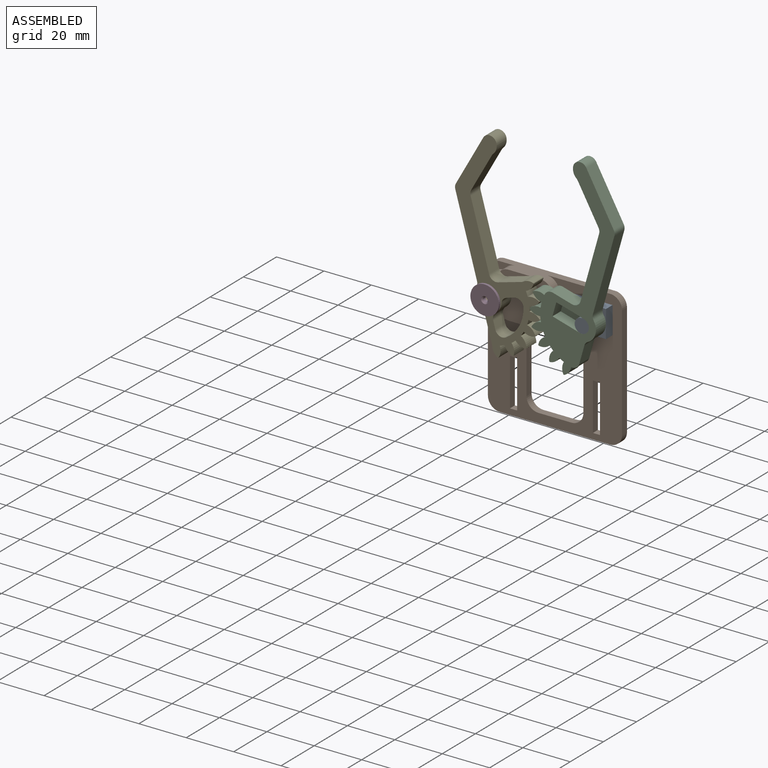
[diagram: assembled view]
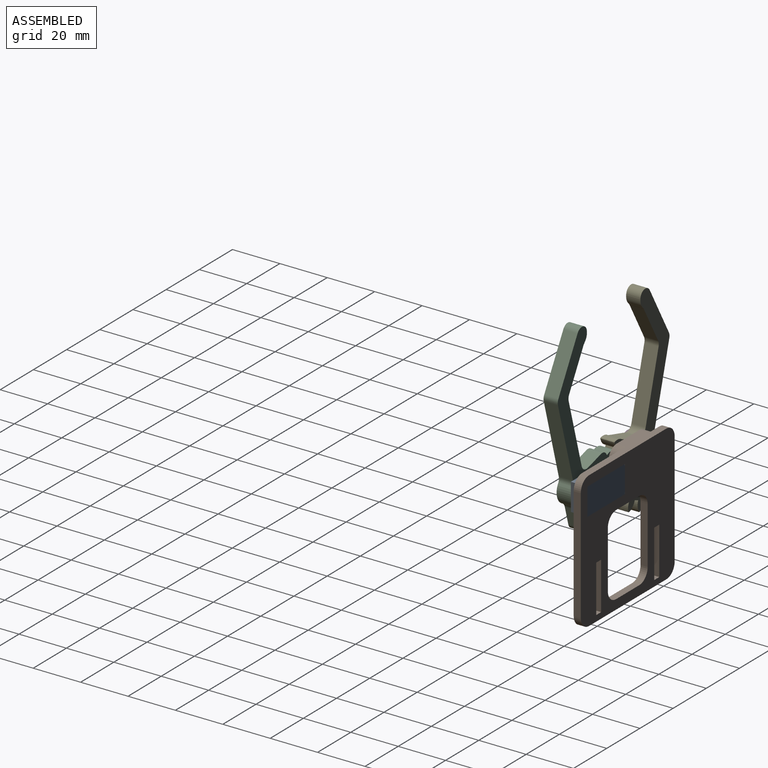
[diagram: assembled view, second angle]
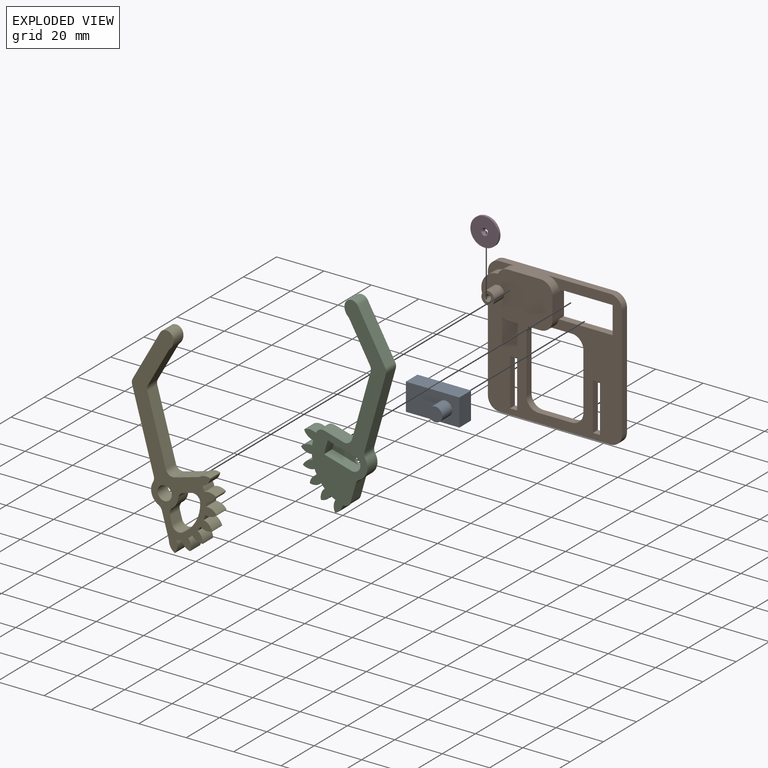
[diagram: exploded view]
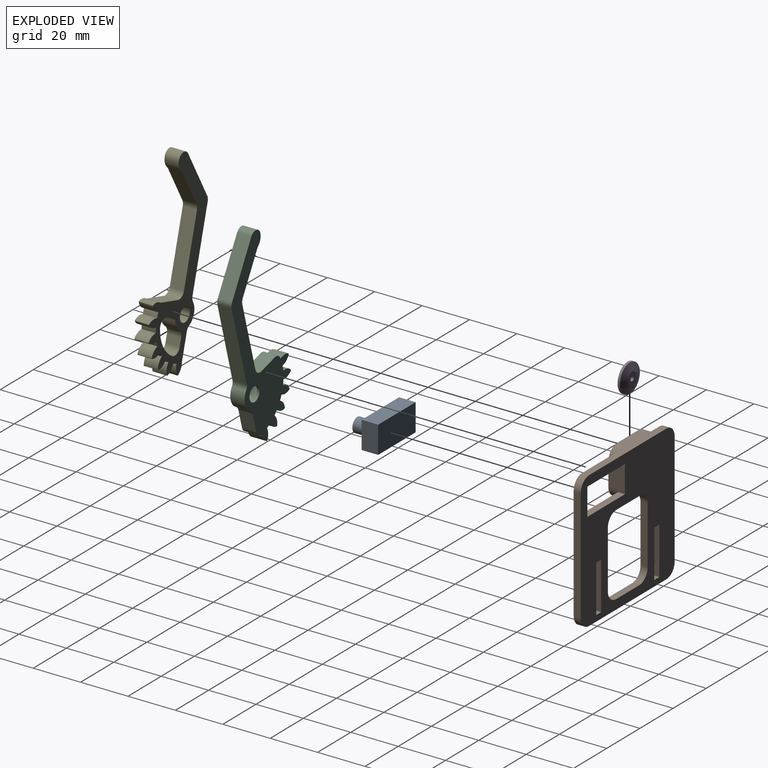
[diagram: exploded view, second angle]
ASSEMBLY  parts=5 mates=4
PART A: 9 faces, bbox 22.6x11.5x13 mm
  f0: plane 11.5x7mm, normal (1,0,0), area 80.5mm2, adj f1,f4,f5,f6
  f1: plane 22.53x7mm, normal (0,-1,0), area 157.7mm2, adj f0,f2,f5,f6
  f2: cylinder r=17.5mm len=7mm, axis (0,0,1), area 1.6mm2, adj f1,f3,f5,f6
  f3: plane 11.29x7mm, normal (-1,0,0), area 79mm2, adj f2,f4,f5,f6
  f4: plane 22.6x7mm, normal (0,1,0), area 158.2mm2, adj f0,f3,f5,f6
  f5: plane 22.6x11.5mm, normal (0,0,-1), area 259.9mm2, adj f0,f1,f2,f3,f4
  f6: plane 22.6x11.5mm, normal (0,0,1), area 231.6mm2, adj f0,f1,f2,f3,f4,f7
  f7: cylinder r=3mm len=6mm, axis (0,0,-1), area 113.1mm2, adj f6,f8
  f8: plane 6x6mm, normal (0,0,1), area 28.3mm2, adj f7
PART B: 42 faces, bbox 56.6x57.5x13 mm
  f0: plane 57.5x56.6mm, normal (0,0,1), area 1522.9mm2, adj f1,f2,f3,f4,f5,f6,f7,f8
  f1: plane 3x3mm, normal (0,-1,0), area 9mm2, adj f0,f2,f20,f21
  f2: plane 20x3mm, normal (1,0,0), area 60mm2, adj f0,f1,f3,f21
  f3: plane 3x3mm, normal (0,1,0), area 9mm2, adj f0,f2,f20,f21
  f4: plane 3x3mm, normal (0,-1,0), area 9mm2, adj f0,f5,f16,f21
  f5: plane 20x3mm, normal (1,0,0), area 60mm2, adj f0,f4,f6,f21
  f6: plane 3x3mm, normal (0,1,0), area 9mm2, adj f0,f5,f16,f21
  f7: plane 24x3mm, normal (-1,0,0), area 72mm2, adj f0,f21,f34,f36
  f8: plane 23.84x7mm, normal (0,-1,0), area 96.1mm2, adj f0,f21,f24,f28,f30,f33,f34
  f9: plane 24x3mm, normal (1,0,0), area 72mm2, adj f0,f21,f33,f35
  f10: plane 22.7x3mm, normal (0,-1,0), area 68.1mm2, adj f0,f18,f21,f27
  f11: plane 9.5x7mm, normal (1,0,0), area 66.5mm2, adj f21,f24,f27,f30
  f12: plane 22.7x3mm, normal (0,1,0), area 68.1mm2, adj f0,f18,f21,f30
  f13: plane 46.6x7mm, normal (0,1,0), area 193.9mm2, adj f0,f21,f22,f24,f27,f29,f31,f32
  f14: plane 47.5x3mm, normal (1,0,0), area 142.5mm2, adj f0,f21,f32,f37
  f15: plane 46.6x3mm, normal (0,-1,0), area 139.8mm2, adj f0,f21,f37,f38
  f16: plane 20x3mm, normal (-1,0,0), area 60mm2, adj f0,f4,f6,f21
  f17: plane 14x3mm, normal (0,1,0), area 42mm2, adj f0,f21,f35,f36
  f18: plane 11.5x3mm, normal (-1,0,0), area 34.5mm2, adj f0,f10,f12,f21
  f19: plane 47.5x3mm, normal (-1,0,0), area 142.5mm2, adj f0,f21,f22,f31,f38
  f20: plane 20x3mm, normal (-1,0,0), area 60mm2, adj f0,f1,f3,f21
  f21: plane 57.5x56.6mm, normal (0,0,-1), area 2058.5mm2, adj f1,f2,f3,f4,f5,f6,f7,f8
  f22: plane 11.47x9.75mm, normal (0,0,1), area 27.9mm2, adj f13,f19,f23,f29,f31
  f23: cylinder r=7mm len=14mm, axis (0,0,-1), area 88mm2, adj f0,f22,f24,f28,f29
  f24: plane 30x19.5mm, normal (0,0,1), area 484mm2, adj f8,f11,f13,f23,f25,f27,f28,f29
  f25: cylinder r=2.75mm len=6mm, axis (0,0,-1), area 103.7mm2, adj f24,f26
  f26: plane 5.5x5.5mm, normal (0,0,1), area 16.7mm2, adj f25,f40
  f27: cylinder r=5mm len=7mm, axis (0,0,-1), area 34.4mm2, adj f0,f10,f11,f13,f21,f24
  f28: cylinder r=5mm len=4.47mm, axis (0,0,-1), area 22.1mm2, adj f0,f8,f23,f24
  f29: cylinder r=5mm len=4.47mm, axis (0,0,-1), area 22.1mm2, adj f13,f22,f23,f24
  f30: cylinder r=5mm len=7mm, axis (0,0,-1), area 34.4mm2, adj f0,f8,f11,f12,f21,f24
  f31: cylinder r=5mm len=5mm, axis (0,0,1), area 23.6mm2, adj f13,f19,f21,f22
  f32: cylinder r=5mm len=5mm, axis (0,0,1), area 23.6mm2, adj f0,f13,f14,f21
  f33: cylinder r=5mm len=5mm, axis (0,0,1), area 23.6mm2, adj f0,f8,f9,f21
  f34: cylinder r=5mm len=5mm, axis (0,0,-1), area 23.6mm2, adj f0,f7,f8,f21
  f35: cylinder r=5mm len=5mm, axis (0,0,1), area 23.6mm2, adj f0,f9,f17,f21
  f36: cylinder r=5mm len=5mm, axis (0,0,-1), area 23.6mm2, adj f0,f7,f17,f21
  f37: cylinder r=5mm len=5mm, axis (0,0,1), area 23.6mm2, adj f0,f14,f15,f21
  f38: cylinder r=5mm len=5mm, axis (0,0,1), area 23.6mm2, adj f0,f15,f19,f21
  f39: cylinder r=1mm len=7.5mm, axis (0,0,1), area 47.1mm2, adj f40,f41
  f40: cone r=1mm half-angle=45deg, axis (0,0,1), area 5.6mm2, adj f26,f39
  f41: cone r=0mm half-angle=59deg, axis (0,0,1), area 3.7mm2, adj f39
PART C: 49 faces, bbox 27.9x81.8x6 mm
  f0: plane 12x5mm, normal (0,-1,0), area 60mm2, adj f1,f37,f38,f40
  f1: cylinder r=3mm len=6mm, axis (0,0,-1), area 66mm2, adj f0,f2,f38,f39,f40
  f2: plane 12x5mm, normal (0,1,0), area 60mm2, adj f1,f37,f38,f40
  f3: plane 7.8x6mm, normal (1,0,0), area 46.8mm2, adj f38,f39,f41,f45
  f4: cylinder r=6mm len=8.94mm, axis (0,0,-1), area 60.6mm2, adj f38,f39,f44,f45
  f5: plane 33.49x6mm, normal (1,0,0), area 201mm2, adj f6,f38,f39,f44
  f6: cylinder r=3mm len=6mm, axis (0,0,-1), area 14.1mm2, adj f5,f7,f38,f39
  f7: plane 16.7x16.7mm, normal (0.71,0.71,0), area 141.7mm2, adj f6,f38,f39,f47
  f8: cylinder r=4.55mm len=6mm, axis (0,0,-1), area 28.4mm2, adj f38,f39,f47,f48
  f9: plane 12.53x12.53mm, normal (-0.71,-0.71,0), area 106.3mm2, adj f38,f39,f46,f48
  f10: plane 28.96x6mm, normal (-1,0,0), area 173.8mm2, adj f38,f39,f42,f46
  f11: plane 8.24x6mm, normal (0,1,0), area 49.4mm2, adj f38,f39,f42,f43
  f12: cylinder r=17.5mm len=6mm, axis (0,0,-1), area 1.9mm2, adj f13,f38,f39,f43
  f13: cylinder r=4.94mm len=6mm, axis (0,0,-1), area 30.2mm2, adj f12,f14,f38,f39
  f14: plane 6x0.28mm, normal (-1,0.08,0), area 1.7mm2, adj f13,f15,f38,f39
  f15: cylinder r=4.94mm len=6mm, axis (0,0,-1), area 30.2mm2, adj f14,f16,f38,f39
  f16: cylinder r=17.5mm len=6mm, axis (0,0,-1), area 13.3mm2, adj f15,f17,f38,f39
  f17: cylinder r=4.94mm len=6mm, axis (0,0,-1), area 30.2mm2, adj f16,f18,f38,f39
  f18: plane 6x0.27mm, normal (-0.97,-0.23,0), area 1.7mm2, adj f17,f19,f38,f39
  f19: cylinder r=4.94mm len=6mm, axis (0,0,-1), area 29.9mm2, adj f18,f20,f38,f39
  f20: plane 6x0.14mm, normal (1,0,0), area 0.8mm2, adj f19,f21,f38,f39
  f21: cylinder r=17.5mm len=6mm, axis (0,0,-1), area 14.1mm2, adj f20,f22,f38,f39
  f22: cylinder r=4.94mm len=6mm, axis (0,0,-1), area 30.2mm2, adj f21,f23,f38,f39
  f23: plane 6x0.24mm, normal (-0.85,-0.52,0), area 1.7mm2, adj f22,f24,f38,f39
  f24: cylinder r=4.94mm len=6mm, axis (0,0,-1), area 30.2mm2, adj f23,f25,f38,f39
  f25: cylinder r=17.5mm len=6mm, axis (0,0,-1), area 13.3mm2, adj f24,f26,f38,f39
  f26: cylinder r=4.94mm len=6mm, axis (0,0,-1), area 30.2mm2, adj f25,f27,f38,f39
  f27: plane 6x0.21mm, normal (-0.65,-0.76,0), area 1.7mm2, adj f26,f28,f38,f39
  f28: cylinder r=4.94mm len=6mm, axis (0,0,-1), area 30.2mm2, adj f27,f29,f38,f39
  f29: cylinder r=17.5mm len=6mm, axis (0,0,-1), area 13.3mm2, adj f28,f30,f38,f39
  f30: cylinder r=4.94mm len=6mm, axis (0,0,-1), area 30.2mm2, adj f29,f31,f38,f39
  f31: plane 6x0.26mm, normal (-0.38,-0.92,0), area 1.7mm2, adj f30,f32,f38,f39
  f32: cylinder r=4.94mm len=6mm, axis (0,0,-1), area 30.2mm2, adj f31,f33,f38,f39
  f33: cylinder r=17.5mm len=6mm, axis (0,0,-1), area 13.3mm2, adj f32,f34,f38,f39
  f34: cylinder r=4.94mm len=6mm, axis (0,0,-1), area 30.2mm2, adj f33,f35,f38,f39
  f35: plane 6x0.28mm, normal (-0.08,-1,0), area 1.7mm2, adj f34,f36,f38,f39
  f36: cylinder r=4.94mm len=6mm, axis (0,0,-1), area 30.2mm2, adj f35,f38,f39,f41
  f37: plane 6x5mm, normal (1,0,0), area 30mm2, adj f0,f2,f38,f40
  f38: plane 81.84x27.94mm, normal (0,0,1), area 780.4mm2, adj f0,f1,f2,f3,f4,f5,f6,f7
  f39: plane 81.84x27.94mm, normal (0,0,-1), area 838.3mm2, adj f1,f3,f4,f5,f6,f7,f8,f9
  f40: plane 12x6mm, normal (0,0,1), area 57.9mm2, adj f0,f1,f2,f37
  f41: cylinder r=3mm len=6mm, axis (0,0,1), area 26.7mm2, adj f3,f36,f38,f39
  f42: cylinder r=3mm len=6mm, axis (0,0,1), area 28.3mm2, adj f10,f11,f38,f39
  f43: cylinder r=3mm len=6mm, axis (0,0,-1), area 24.8mm2, adj f11,f12,f38,f39
  f44: cylinder r=3mm len=6mm, axis (0,0,-1), area 15.1mm2, adj f4,f5,f38,f39
  f45: cylinder r=3mm len=6mm, axis (0,0,-1), area 15.1mm2, adj f3,f4,f38,f39
  f46: cylinder r=3mm len=6mm, axis (0,0,-1), area 14.1mm2, adj f9,f10,f38,f39
  f47: cylinder r=3mm len=6mm, axis (0,0,-1), area 43.6mm2, adj f7,f8,f38,f39
  f48: cylinder r=3mm len=6mm, axis (0,0,-1), area 5.8mm2, adj f8,f9,f38,f39
PART D: 6 faces, bbox 12x12x2 mm
  f0: cylinder r=6mm len=12mm, axis (0,0,-1), area 37.7mm2, adj f1,f3
  f1: plane 12x12mm, normal (0,0,1), area 106mm2, adj f0,f5
  f2: plane 5.5x5.5mm, normal (0,0,-1), area 20.6mm2, adj f3,f4
  f3: cone r=6mm half-angle=72.9deg, axis (0,0,1), area 93.5mm2, adj f0,f2
  f4: cylinder r=1mm len=2mm, axis (0,0,1), area 9.4mm2, adj f2,f5
  f5: cone r=1mm half-angle=45deg, axis (0,0,1), area 5.6mm2, adj f1,f4
PART E: 55 faces, bbox 27.7x81.8x6 mm
  f0: cylinder r=5.75mm len=6mm, axis (0,0,-1), area 30mm2, adj f41,f42,f44,f47
  f1: plane 6x3.4mm, normal (0,-1,0), area 20.4mm2, adj f41,f42,f44,f45
  f2: cylinder r=15mm len=10.77mm, axis (0,0,-1), area 95.9mm2, adj f41,f42,f45,f46
  f3: plane 10.53x6mm, normal (0,1,0), area 63.2mm2, adj f41,f42,f43,f50
  f4: plane 28.96x6mm, normal (1,0,0), area 173.8mm2, adj f41,f42,f43,f52
  f5: plane 12.53x12.53mm, normal (0.71,-0.71,0), area 106.3mm2, adj f41,f42,f52,f53
  f6: cylinder r=4.55mm len=6mm, axis (0,0,-1), area 28.4mm2, adj f41,f42,f53,f54
  f7: plane 16.7x16.7mm, normal (-0.71,0.71,0), area 141.7mm2, adj f8,f41,f42,f54
  f8: cylinder r=3mm len=6mm, axis (0,0,-1), area 14.1mm2, adj f7,f9,f41,f42
  f9: plane 33.83x6mm, normal (-1,0,0), area 203mm2, adj f8,f41,f42,f51
  f10: cylinder r=5.75mm len=8.37mm, axis (0,0,-1), area 56.2mm2, adj f41,f42,f48,f51
  f11: plane 10.82x6mm, normal (-1,0,0), area 64.9mm2, adj f41,f42,f48,f49
  f12: cylinder r=4.94mm len=6mm, axis (0,0,-1), area 30.2mm2, adj f13,f41,f42,f49
  f13: plane 6x0.28mm, normal (-0.08,-1,0), area 1.7mm2, adj f12,f14,f41,f42
  f14: cylinder r=4.94mm len=6mm, axis (0,0,-1), area 30.2mm2, adj f13,f15,f41,f42
  f15: cylinder r=17.5mm len=6mm, axis (0,0,-1), area 13.3mm2, adj f14,f16,f41,f42
  f16: cylinder r=4.94mm len=6mm, axis (0,0,-1), area 30.2mm2, adj f15,f17,f41,f42
  f17: plane 6x0.27mm, normal (0.23,-0.97,0), area 1.7mm2, adj f16,f18,f41,f42
  f18: cylinder r=4.94mm len=6mm, axis (0,0,-1), area 30.2mm2, adj f17,f19,f41,f42
  f19: cylinder r=17.5mm len=6mm, axis (0,0,-1), area 13.3mm2, adj f18,f20,f41,f42
  f20: cylinder r=4.94mm len=6mm, axis (0,0,-1), area 30.2mm2, adj f19,f21,f41,f42
  f21: plane 6x0.24mm, normal (0.52,-0.85,0), area 1.7mm2, adj f20,f22,f41,f42
  f22: cylinder r=4.94mm len=6mm, axis (0,0,-1), area 30.2mm2, adj f21,f23,f41,f42
  f23: cylinder r=17.5mm len=6mm, axis (0,0,-1), area 13.3mm2, adj f22,f24,f41,f42
  f24: cylinder r=4.94mm len=6mm, axis (0,0,-1), area 30.2mm2, adj f23,f25,f41,f42
  f25: plane 6x0.21mm, normal (0.76,-0.65,0), area 1.7mm2, adj f24,f26,f41,f42
  f26: cylinder r=4.94mm len=6mm, axis (0,0,-1), area 30.2mm2, adj f25,f27,f41,f42
  f27: cylinder r=17.5mm len=6mm, axis (0,0,-1), area 13.3mm2, adj f26,f28,f41,f42
  f28: cylinder r=4.94mm len=6mm, axis (0,0,-1), area 30.2mm2, adj f27,f29,f41,f42
  f29: plane 6x0.26mm, normal (0.92,-0.38,0), area 1.7mm2, adj f28,f30,f41,f42
  f30: cylinder r=4.94mm len=6mm, axis (0,0,-1), area 30.2mm2, adj f29,f31,f41,f42
  f31: cylinder r=17.5mm len=6mm, axis (0,0,-1), area 13.3mm2, adj f30,f32,f41,f42
  f32: cylinder r=4.94mm len=6mm, axis (0,0,-1), area 30.2mm2, adj f31,f33,f41,f42
  f33: plane 6x0.28mm, normal (1,-0.08,0), area 1.7mm2, adj f32,f34,f41,f42
  f34: cylinder r=4.94mm len=6mm, axis (0,0,-1), area 30.2mm2, adj f33,f35,f41,f42
  f35: cylinder r=17.5mm len=6mm, axis (0,0,-1), area 13.3mm2, adj f34,f36,f41,f42
  f36: cylinder r=4.94mm len=6mm, axis (0,0,-1), area 30.2mm2, adj f35,f37,f41,f42
  f37: plane 6x0.27mm, normal (0.97,0.23,0), area 1.7mm2, adj f36,f38,f41,f42
  f38: cylinder r=4.94mm len=6mm, axis (0,0,-1), area 26.6mm2, adj f37,f41,f42,f50
  f39: plane 6x3.4mm, normal (1,0,0), area 20.4mm2, adj f41,f42,f46,f47
  f40: cylinder r=3mm len=6mm, axis (0,0,-1), area 113.1mm2, adj f41,f42
  f41: plane 81.84x27.69mm, normal (0,0,1), area 706.9mm2, adj f0,f1,f2,f3,f4,f5,f6,f7
  f42: plane 81.84x27.69mm, normal (0,0,-1), area 706.9mm2, adj f0,f1,f2,f3,f4,f5,f6,f7
  f43: cylinder r=3mm len=6mm, axis (0,0,1), area 28.3mm2, adj f3,f4,f41,f42
  f44: cylinder r=3mm len=6mm, axis (0,0,-1), area 22mm2, adj f0,f1,f41,f42
  f45: cylinder r=3mm len=6mm, axis (0,0,-1), area 32.8mm2, adj f1,f2,f41,f42
  f46: cylinder r=3mm len=6mm, axis (0,0,-1), area 32.8mm2, adj f2,f39,f41,f42
  f47: cylinder r=3mm len=6mm, axis (0,0,-1), area 22mm2, adj f0,f39,f41,f42
  f48: cylinder r=3mm len=6mm, axis (0,0,-1), area 14.7mm2, adj f10,f11,f41,f42
  f49: cylinder r=3mm len=6mm, axis (0,0,-1), area 0.3mm2, adj f11,f12,f41,f42
  f50: cylinder r=3mm len=6mm, axis (0,0,1), area 3.6mm2, adj f3,f38,f41,f42
  f51: cylinder r=3mm len=6mm, axis (0,0,-1), area 14.7mm2, adj f9,f10,f41,f42
  f52: cylinder r=3mm len=6mm, axis (0,0,-1), area 14.1mm2, adj f4,f5,f41,f42
  f53: cylinder r=3mm len=6mm, axis (0,0,-1), area 5.8mm2, adj f5,f6,f41,f42
  f54: cylinder r=3mm len=6mm, axis (0,0,-1), area 43.6mm2, adj f6,f7,f41,f42
PLACE A rot(axis=(1,0,0),90deg) t=(19.94,-7,17.46)mm
PLACE B rot(axis=(1,0,0),90deg) t=(19.94,-7,17.46)mm
PLACE C rot(axis=(0.98,0.14,-0.14),91.1deg) t=(19.94,-7,17.46)mm
PLACE D rot(axis=(1,0,0),90deg) t=(-44.66,-13,17.46)mm
PLACE E rot(axis=(0.98,-0.14,0.14),91.1deg) t=(18.46,-7,28.17)mm
MATE fastened A.f5 <-> B.f21  axis (0,1,0) through (25.94,0,11.71)mm
MATE revolute B.f23 <-> E.f0  axis (0,1,0) through (-19.66,-7,17.46)mm
MATE fastened D.f0 <-> B.f23  axis (0,-1,0) through (-19.66,-13,17.46)mm
MATE revolute C.f1 <-> A.f2  axis (0,1,0) through (19.94,-7,17.46)mm
